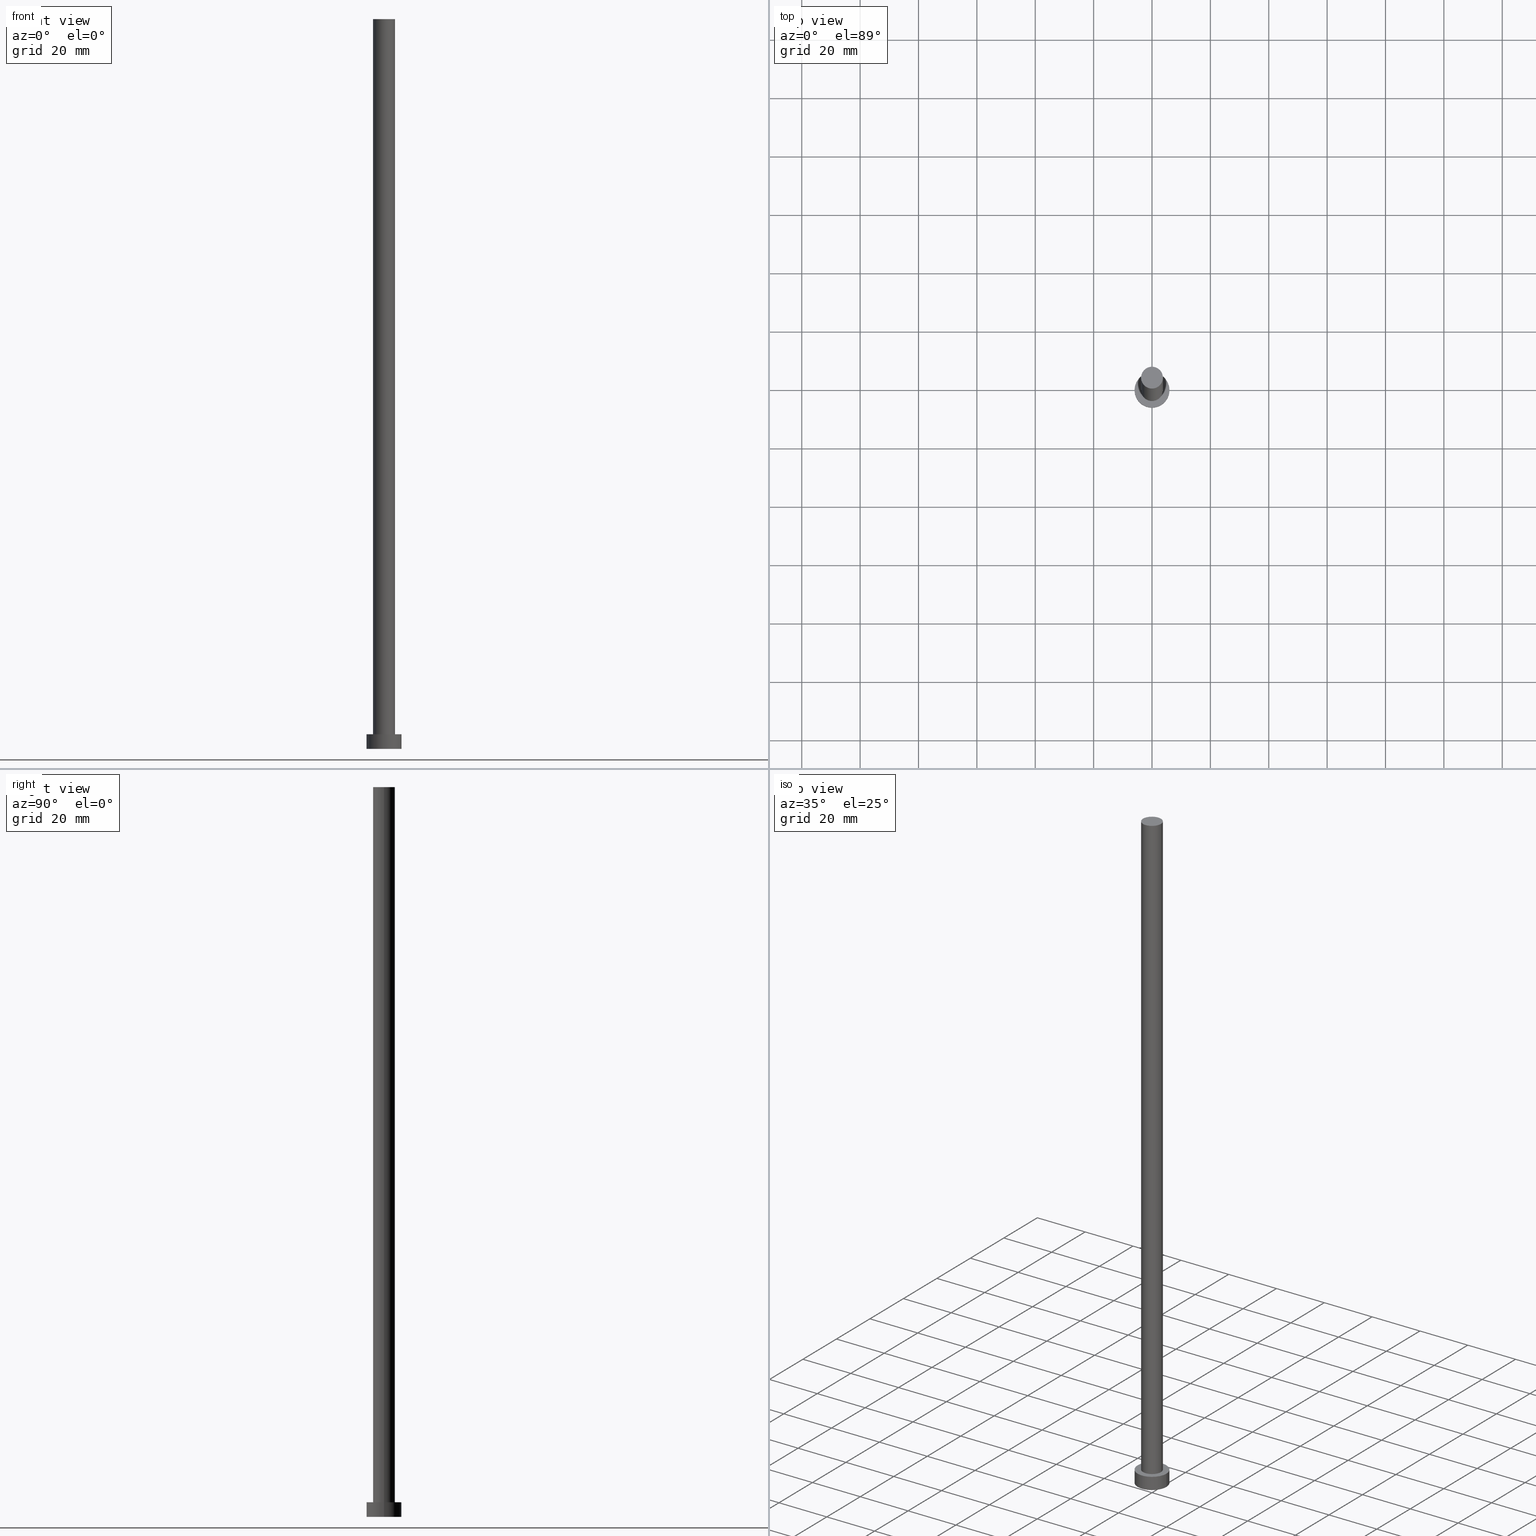
[diagram: canonical four-view strip — front | top / right | iso, engineering-drawing reading convention]
A machine part, canonical four-view strip (front | top / right | iso — engineering-drawing reading convention). The complete STEP part file that produces these views, byte-faithful:
ISO-10303-21;
HEADER;
FILE_DESCRIPTION (( 'STEP AP203' ),
    '1' );
FILE_NAME ('aa1a.STEP',
    '2023-02-12T11:57:01',
    ( '' ),
    ( '' ),
    'SwSTEP 2.0',
    'SolidWorks 2019',
    '' );
FILE_SCHEMA (( 'CONFIG_CONTROL_DESIGN' ));
ENDSEC;

DATA;
#1 = VERTEX_POINT ( 'NONE', #104 ) ;
#2 = DIRECTION ( 'NONE',  ( -0.000000000000000000, -0.000000000000000000, -1.000000000000000000 ) ) ;
#3 = EDGE_LOOP ( 'NONE', ( #223, #162, #79, #120 ) ) ;
#4 = CARTESIAN_POINT ( 'NONE',  ( 0.000000000000000000, 0.000000000000000000, 250.0000000000000000 ) ) ;
#5 = CIRCLE ( 'NONE', #180, 6.000000000000000888 ) ;
#6 = APPROVAL_PERSON_ORGANIZATION ( #75, #132, #34 ) ;
#7 = DIRECTION ( 'NONE',  ( 0.000000000000000000, 0.000000000000000000, 1.000000000000000000 ) ) ;
#8 = ADVANCED_FACE ( 'NONE', ( #179 ), #80, .T. ) ;
#9 = DIRECTION ( 'NONE',  ( 0.000000000000000000, 0.000000000000000000, 1.000000000000000000 ) ) ;
#10 = APPROVAL ( #192, 'NEUR�EN�' ) ;
#11 = DIRECTION ( 'NONE',  ( 1.000000000000000000, 0.000000000000000000, 0.000000000000000000 ) ) ;
#12 =( GEOMETRIC_REPRESENTATION_CONTEXT ( 3 ) GLOBAL_UNCERTAINTY_ASSIGNED_CONTEXT ( ( #62 ) ) GLOBAL_UNIT_ASSIGNED_CONTEXT ( ( #46, #87, #149 ) ) REPRESENTATION_CONTEXT ( 'NONE', 'WORKASPACE' ) );
#13 = APPLICATION_PROTOCOL_DEFINITION ( 'international standard', 'config_control_design', 1994, #198 ) ;
#14 = FACE_OUTER_BOUND ( 'NONE', #154, .T. ) ;
#15 = CC_DESIGN_SECURITY_CLASSIFICATION ( #119, ( #45 ) ) ;
#16 = CIRCLE ( 'NONE', #207, 6.000000000000000888 ) ;
#17 = CALENDAR_DATE ( 2023, 12, 2 ) ;
#18 = DATE_TIME_ROLE ( 'classification_date' ) ;
#19 = CC_DESIGN_PERSON_AND_ORGANIZATION_ASSIGNMENT ( #114, #137, ( #45 ) ) ;
#20 = AXIS2_PLACEMENT_3D ( 'NONE', #161, #200, #156 ) ;
#21 = ORIENTED_EDGE ( 'NONE', *, *, #108, .F. ) ;
#22 = CIRCLE ( 'NONE', #101, 6.000000000000000888 ) ;
#23 = CC_DESIGN_PERSON_AND_ORGANIZATION_ASSIGNMENT ( #68, #150, ( #215 ) ) ;
#24 = ORIENTED_EDGE ( 'NONE', *, *, #115, .T. ) ;
#25 = ORIENTED_EDGE ( 'NONE', *, *, #115, .F. ) ;
#26 = CARTESIAN_POINT ( 'NONE',  ( 6.000000000000000888, 7.347880794884120722E-16, 5.000000000000000000 ) ) ;
#27 = CIRCLE ( 'NONE', #20, 6.000000000000000888 ) ;
#28 = CARTESIAN_POINT ( 'NONE',  ( -3.750000000000000000, 0.000000000000000000, 250.0000000000000000 ) ) ;
#29 = DIRECTION ( 'NONE',  ( -0.000000000000000000, -0.000000000000000000, -1.000000000000000000 ) ) ;
#30 = FACE_BOUND ( 'NONE', #197, .T. ) ;
#31 = ADVANCED_BREP_SHAPE_REPRESENTATION ( 'aa1a', ( #240, #252 ), #12 ) ;
#32 = CARTESIAN_POINT ( 'NONE',  ( 0.000000000000000000, 0.000000000000000000, 5.000000000000000000 ) ) ;
#33 = VECTOR ( 'NONE', #107, 1000.000000000000000 ) ;
#34 = APPROVAL_ROLE ( '' ) ;
#35 = CC_DESIGN_PERSON_AND_ORGANIZATION_ASSIGNMENT ( #55, #255, ( #45 ) ) ;
#36 = DATE_AND_TIME ( #250, #110 ) ;
#37 = VECTOR ( 'NONE', #29, 1000.000000000000000 ) ;
#38 = ORIENTED_EDGE ( 'NONE', *, *, #52, .F. ) ;
#39 = EDGE_CURVE ( 'NONE', #143, #74, #5, .T. ) ;
#40 = DIRECTION ( 'NONE',  ( -0.000000000000000000, -0.000000000000000000, -1.000000000000000000 ) ) ;
#41 = ORIENTED_EDGE ( 'NONE', *, *, #57, .T. ) ;
#42 = ORIENTED_EDGE ( 'NONE', *, *, #108, .T. ) ;
#43 = DIRECTION ( 'NONE',  ( 1.000000000000000000, 0.000000000000000000, 0.000000000000000000 ) ) ;
#44 = CARTESIAN_POINT ( 'NONE',  ( 0.000000000000000000, 0.000000000000000000, 0.000000000000000000 ) ) ;
#45 = PRODUCT_DEFINITION_FORMATION_WITH_SPECIFIED_SOURCE ( 'LIBOVOLN�', '', #215, .NOT_KNOWN. ) ;
#46 =( LENGTH_UNIT ( ) NAMED_UNIT ( * ) SI_UNIT ( .MILLI., .METRE. ) );
#47 = DIRECTION ( 'NONE',  ( 0.000000000000000000, 0.000000000000000000, 1.000000000000000000 ) ) ;
#48 = ADVANCED_FACE ( 'NONE', ( #177 ), #182, .F. ) ;
#49 = DIRECTION ( 'NONE',  ( 0.000000000000000000, 0.000000000000000000, 1.000000000000000000 ) ) ;
#50 = CC_DESIGN_PERSON_AND_ORGANIZATION_ASSIGNMENT ( #170, #92, ( #119 ) ) ;
#51 = CARTESIAN_POINT ( 'NONE',  ( 3.750000000000000000, 4.592425496802573972E-16, 250.0000000000000000 ) ) ;
#52 = EDGE_CURVE ( 'NONE', #93, #99, #69, .T. ) ;
#53 = DIRECTION ( 'NONE',  ( 1.000000000000000000, 0.000000000000000000, 0.000000000000000000 ) ) ;
#54 = DATE_AND_TIME ( #118, #95 ) ;
#55 = PERSON_AND_ORGANIZATION ( #59, #82 ) ;
#56 = COORDINATED_UNIVERSAL_TIME_OFFSET ( 1, 0, .AHEAD. ) ;
#57 = EDGE_CURVE ( 'NONE', #242, #216, #139, .T. ) ;
#58 = ORIENTED_EDGE ( 'NONE', *, *, #168, .F. ) ;
#59 = PERSON ( 'NEUR�EN�', 'NEUR�EN�', 'NEUR�EN�', ('NEUR�EN�'), ('NEUR�EN�'), ('NEUR�EN�') ) ;
#60 = APPROVAL_STATUS ( 'not_yet_approved' ) ;
#61 = CYLINDRICAL_SURFACE ( 'NONE', #175, 6.000000000000000888 ) ;
#62 = UNCERTAINTY_MEASURE_WITH_UNIT (LENGTH_MEASURE( 1.000000000000000082E-05 ), #46, 'distance_accuracy_value', 'NONE');
#63 = DIRECTION ( 'NONE',  ( -1.000000000000000000, 0.000000000000000000, 0.000000000000000000 ) ) ;
#64 = FACE_OUTER_BOUND ( 'NONE', #3, .T. ) ;
#65 = ORIENTED_EDGE ( 'NONE', *, *, #127, .T. ) ;
#66 = CARTESIAN_POINT ( 'NONE',  ( 0.000000000000000000, 0.000000000000000000, 5.000000000000000000 ) ) ;
#67 = FACE_OUTER_BOUND ( 'NONE', #125, .T. ) ;
#68 = PERSON_AND_ORGANIZATION ( #59, #82 ) ;
#69 = CIRCLE ( 'NONE', #105, 3.750000000000000000 ) ;
#70 = DIRECTION ( 'NONE',  ( -0.000000000000000000, -0.000000000000000000, -1.000000000000000000 ) ) ;
#71 = CALENDAR_DATE ( 2023, 12, 2 ) ;
#72 = DATE_AND_TIME ( #231, #246 ) ;
#73 = AXIS2_PLACEMENT_3D ( 'NONE', #174, #239, #217 ) ;
#74 = VERTEX_POINT ( 'NONE', #129 ) ;
#75 = PERSON_AND_ORGANIZATION ( #59, #82 ) ;
#76 = EDGE_CURVE ( 'NONE', #1, #122, #27, .T. ) ;
#77 = CIRCLE ( 'NONE', #228, 3.750000000000000000 ) ;
#78 = ORIENTED_EDGE ( 'NONE', *, *, #181, .T. ) ;
#79 = ORIENTED_EDGE ( 'NONE', *, *, #39, .T. ) ;
#80 = CYLINDRICAL_SURFACE ( 'NONE', #73, 6.000000000000000888 ) ;
#81 = DIRECTION ( 'NONE',  ( 1.000000000000000000, 0.000000000000000000, 0.000000000000000000 ) ) ;
#82 = ORGANIZATION ( 'NEUR�EN�', 'NEUR�EN�', '' ) ;
#83 = CC_DESIGN_DATE_AND_TIME_ASSIGNMENT ( #72, #134, ( #142 ) ) ;
#84 = DIRECTION ( 'NONE',  ( 0.000000000000000000, 0.000000000000000000, 1.000000000000000000 ) ) ;
#85 = LINE ( 'NONE', #163, #208 ) ;
#86 = CYLINDRICAL_SURFACE ( 'NONE', #138, 3.750000000000000000 ) ;
#87 =( NAMED_UNIT ( * ) PLANE_ANGLE_UNIT ( ) SI_UNIT ( $, .RADIAN. ) );
#88 = LINE ( 'NONE', #28, #37 ) ;
#89 = ADVANCED_FACE ( 'NONE', ( #64 ), #61, .T. ) ;
#90 = CLOSED_SHELL ( 'NONE', ( #97, #89, #8, #171, #48, #201, #221 ) ) ;
#91 = SECURITY_CLASSIFICATION_LEVEL ( 'unclassified' ) ;
#92 = PERSON_AND_ORGANIZATION_ROLE ( 'classification_officer' ) ;
#93 = VERTEX_POINT ( 'NONE', #241 ) ;
#94 = APPROVAL_STATUS ( 'not_yet_approved' ) ;
#95 = LOCAL_TIME ( 12, 57, 1.000000000000000000, #96 ) ;
#96 = COORDINATED_UNIVERSAL_TIME_OFFSET ( 1, 0, .AHEAD. ) ;
#97 = ADVANCED_FACE ( 'NONE', ( #194 ), #244, .T. ) ;
#98 = EDGE_LOOP ( 'NONE', ( #21, #136 ) ) ;
#99 = VERTEX_POINT ( 'NONE', #124 ) ;
#100 = DESIGN_CONTEXT ( 'detailed design', #243, 'design' ) ;
#101 = AXIS2_PLACEMENT_3D ( 'NONE', #32, #47, #11 ) ;
#102 = ORIENTED_EDGE ( 'NONE', *, *, #76, .T. ) ;
#103 = DIRECTION ( 'NONE',  ( 0.000000000000000000, 0.000000000000000000, 1.000000000000000000 ) ) ;
#104 = CARTESIAN_POINT ( 'NONE',  ( -6.000000000000000888, 0.000000000000000000, 5.000000000000000000 ) ) ;
#105 = AXIS2_PLACEMENT_3D ( 'NONE', #4, #84, #81 ) ;
#106 = ORIENTED_EDGE ( 'NONE', *, *, #157, .T. ) ;
#107 = DIRECTION ( 'NONE',  ( -0.000000000000000000, -0.000000000000000000, -1.000000000000000000 ) ) ;
#108 = EDGE_CURVE ( 'NONE', #74, #143, #16, .T. ) ;
#109 = FACE_OUTER_BOUND ( 'NONE', #253, .T. ) ;
#110 = LOCAL_TIME ( 12, 57, 1.000000000000000000, #205 ) ;
#111 = DIRECTION ( 'NONE',  ( 1.000000000000000000, 0.000000000000000000, 0.000000000000000000 ) ) ;
#112 = DIRECTION ( 'NONE',  ( 1.000000000000000000, 0.000000000000000000, -0.000000000000000000 ) ) ;
#113 = LOCAL_TIME ( 12, 57, 1.000000000000000000, #153 ) ;
#114 = PERSON_AND_ORGANIZATION ( #59, #82 ) ;
#115 = EDGE_CURVE ( 'NONE', #216, #242, #77, .T. ) ;
#116 = ORIENTED_EDGE ( 'NONE', *, *, #233, .F. ) ;
#117 = PERSON_AND_ORGANIZATION ( #59, #82 ) ;
#118 = CALENDAR_DATE ( 2023, 12, 2 ) ;
#119 = SECURITY_CLASSIFICATION ( '', '', #91 ) ;
#120 = ORIENTED_EDGE ( 'NONE', *, *, #181, .F. ) ;
#121 = PRODUCT_RELATED_PRODUCT_CATEGORY ( 'detail', '', ( #215 ) ) ;
#122 = VERTEX_POINT ( 'NONE', #26 ) ;
#123 = DIRECTION ( 'NONE',  ( -1.000000000000000000, 0.000000000000000000, 0.000000000000000000 ) ) ;
#124 = CARTESIAN_POINT ( 'NONE',  ( -3.750000000000000000, 0.000000000000000000, 250.0000000000000000 ) ) ;
#125 = EDGE_LOOP ( 'NONE', ( #236, #193 ) ) ;
#126 = ORIENTED_EDGE ( 'NONE', *, *, #168, .T. ) ;
#127 = EDGE_CURVE ( 'NONE', #122, #1, #22, .T. ) ;
#128 = APPROVAL_PERSON_ORGANIZATION ( #191, #10, #172 ) ;
#129 = CARTESIAN_POINT ( 'NONE',  ( -6.000000000000000888, 0.000000000000000000, 0.000000000000000000 ) ) ;
#130 = DIRECTION ( 'NONE',  ( -0.000000000000000000, -0.000000000000000000, -1.000000000000000000 ) ) ;
#131 = CARTESIAN_POINT ( 'NONE',  ( 0.000000000000000000, 0.000000000000000000, 5.000000000000000000 ) ) ;
#132 = APPROVAL ( #94, 'NEUR�EN�' ) ;
#133 = CARTESIAN_POINT ( 'NONE',  ( 3.750000000000000000, 4.592425496802573972E-16, 5.000000000000000000 ) ) ;
#134 = DATE_TIME_ROLE ( 'creation_date' ) ;
#135 = AXIS2_PLACEMENT_3D ( 'NONE', #178, #2, #63 ) ;
#136 = ORIENTED_EDGE ( 'NONE', *, *, #39, .F. ) ;
#137 = PERSON_AND_ORGANIZATION_ROLE ( 'creator' ) ;
#138 = AXIS2_PLACEMENT_3D ( 'NONE', #249, #70, #151 ) ;
#139 = CIRCLE ( 'NONE', #238, 3.750000000000000000 ) ;
#140 = ORIENTED_EDGE ( 'NONE', *, *, #214, .F. ) ;
#141 = CARTESIAN_POINT ( 'NONE',  ( 0.000000000000000000, 0.000000000000000000, 5.000000000000000000 ) ) ;
#142 = PRODUCT_DEFINITION ( 'NEZN�M�', '', #45, #100 ) ;
#143 = VERTEX_POINT ( 'NONE', #167 ) ;
#144 = CC_DESIGN_APPROVAL ( #10, ( #119 ) ) ;
#145 = DIRECTION ( 'NONE',  ( 0.000000000000000000, 0.000000000000000000, 1.000000000000000000 ) ) ;
#146 = DIRECTION ( 'NONE',  ( 0.000000000000000000, 0.000000000000000000, 1.000000000000000000 ) ) ;
#147 = DIRECTION ( 'NONE',  ( 0.000000000000000000, 0.000000000000000000, 1.000000000000000000 ) ) ;
#148 = VECTOR ( 'NONE', #130, 1000.000000000000000 ) ;
#149 =( NAMED_UNIT ( * ) SI_UNIT ( $, .STERADIAN. ) SOLID_ANGLE_UNIT ( ) );
#150 = PERSON_AND_ORGANIZATION_ROLE ( 'design_owner' ) ;
#151 = DIRECTION ( 'NONE',  ( -1.000000000000000000, 0.000000000000000000, 0.000000000000000000 ) ) ;
#152 = APPROVAL_ROLE ( '' ) ;
#153 = COORDINATED_UNIVERSAL_TIME_OFFSET ( 1, 0, .AHEAD. ) ;
#154 = EDGE_LOOP ( 'NONE', ( #102, #65 ) ) ;
#155 = ORIENTED_EDGE ( 'NONE', *, *, #157, .F. ) ;
#156 = DIRECTION ( 'NONE',  ( 1.000000000000000000, 0.000000000000000000, 0.000000000000000000 ) ) ;
#157 = EDGE_CURVE ( 'NONE', #93, #216, #202, .T. ) ;
#158 = DIRECTION ( 'NONE',  ( 1.000000000000000000, 0.000000000000000000, 0.000000000000000000 ) ) ;
#159 = CC_DESIGN_DATE_AND_TIME_ASSIGNMENT ( #36, #18, ( #119 ) ) ;
#160 = CARTESIAN_POINT ( 'NONE',  ( 0.000000000000000000, 0.000000000000000000, 5.000000000000000000 ) ) ;
#161 = CARTESIAN_POINT ( 'NONE',  ( 0.000000000000000000, 0.000000000000000000, 5.000000000000000000 ) ) ;
#162 = ORIENTED_EDGE ( 'NONE', *, *, #233, .T. ) ;
#163 = CARTESIAN_POINT ( 'NONE',  ( 6.000000000000000888, 7.347880794884120722E-16, 5.000000000000000000 ) ) ;
#164 = LOCAL_TIME ( 12, 57, 1.000000000000000000, #251 ) ;
#165 = PLANE ( 'NONE',  #219 ) ;
#166 = CC_DESIGN_PERSON_AND_ORGANIZATION_ASSIGNMENT ( #117, #206, ( #142 ) ) ;
#167 = CARTESIAN_POINT ( 'NONE',  ( 6.000000000000000888, 7.347880794884120722E-16, 0.000000000000000000 ) ) ;
#168 = EDGE_CURVE ( 'NONE', #99, #242, #88, .T. ) ;
#169 = PERSON_AND_ORGANIZATION ( #59, #82 ) ;
#170 = PERSON_AND_ORGANIZATION ( #59, #82 ) ;
#171 = ADVANCED_FACE ( 'NONE', ( #30, #14 ), #184, .T. ) ;
#172 = APPROVAL_ROLE ( '' ) ;
#173 = ORIENTED_EDGE ( 'NONE', *, *, #76, .F. ) ;
#174 = CARTESIAN_POINT ( 'NONE',  ( 0.000000000000000000, 0.000000000000000000, 5.000000000000000000 ) ) ;
#175 = AXIS2_PLACEMENT_3D ( 'NONE', #141, #40, #123 ) ;
#176 = AXIS2_PLACEMENT_3D ( 'NONE', #183, #230, #53 ) ;
#177 = FACE_OUTER_BOUND ( 'NONE', #98, .T. ) ;
#178 = CARTESIAN_POINT ( 'NONE',  ( 0.000000000000000000, 0.000000000000000000, 250.0000000000000000 ) ) ;
#179 = FACE_OUTER_BOUND ( 'NONE', #254, .T. ) ;
#180 = AXIS2_PLACEMENT_3D ( 'NONE', #222, #146, #199 ) ;
#181 = EDGE_CURVE ( 'NONE', #1, #74, #224, .T. ) ;
#182 = PLANE ( 'NONE',  #218 ) ;
#183 = CARTESIAN_POINT ( 'NONE',  ( 0.000000000000000000, 0.000000000000000000, 250.0000000000000000 ) ) ;
#184 = PLANE ( 'NONE',  #248 ) ;
#185 = DIRECTION ( 'NONE',  ( 1.000000000000000000, 0.000000000000000000, -0.000000000000000000 ) ) ;
#186 = MECHANICAL_CONTEXT ( 'NONE', #198, 'mechanical' ) ;
#187 = CARTESIAN_POINT ( 'NONE',  ( -6.000000000000000888, 0.000000000000000000, 5.000000000000000000 ) ) ;
#188 = APPROVAL_DATE_TIME ( #190, #10 ) ;
#189 = CC_DESIGN_APPROVAL ( #210, ( #142 ) ) ;
#190 = DATE_AND_TIME ( #71, #164 ) ;
#191 = PERSON_AND_ORGANIZATION ( #59, #82 ) ;
#192 = APPROVAL_STATUS ( 'not_yet_approved' ) ;
#193 = ORIENTED_EDGE ( 'NONE', *, *, #52, .T. ) ;
#194 = FACE_OUTER_BOUND ( 'NONE', #212, .T. ) ;
#195 = APPROVAL_PERSON_ORGANIZATION ( #169, #210, #152 ) ;
#196 = CARTESIAN_POINT ( 'NONE',  ( 0.000000000000000000, 0.000000000000000000, 0.000000000000000000 ) ) ;
#197 = EDGE_LOOP ( 'NONE', ( #237, #25 ) ) ;
#198 = APPLICATION_CONTEXT ( 'configuration controlled 3d designs of mechanical parts and assemblies' ) ;
#199 = DIRECTION ( 'NONE',  ( 1.000000000000000000, 0.000000000000000000, 0.000000000000000000 ) ) ;
#200 = DIRECTION ( 'NONE',  ( 0.000000000000000000, 0.000000000000000000, 1.000000000000000000 ) ) ;
#201 = ADVANCED_FACE ( 'NONE', ( #109 ), #86, .T. ) ;
#202 = LINE ( 'NONE', #51, #148 ) ;
#203 = CARTESIAN_POINT ( 'NONE',  ( -3.750000000000000000, 0.000000000000000000, 5.000000000000000000 ) ) ;
#204 = DIRECTION ( 'NONE',  ( 0.000000000000000000, 0.000000000000000000, 1.000000000000000000 ) ) ;
#205 = COORDINATED_UNIVERSAL_TIME_OFFSET ( 1, 0, .AHEAD. ) ;
#206 = PERSON_AND_ORGANIZATION_ROLE ( 'creator' ) ;
#207 = AXIS2_PLACEMENT_3D ( 'NONE', #196, #103, #43 ) ;
#208 = VECTOR ( 'NONE', #225, 1000.000000000000000 ) ;
#209 = APPROVAL_DATE_TIME ( #211, #132 ) ;
#210 = APPROVAL ( #60, 'NEUR�EN�' ) ;
#211 = DATE_AND_TIME ( #17, #113 ) ;
#212 = EDGE_LOOP ( 'NONE', ( #38, #106, #24, #58 ) ) ;
#213 = CIRCLE ( 'NONE', #176, 3.750000000000000000 ) ;
#214 = EDGE_CURVE ( 'NONE', #99, #93, #213, .T. ) ;
#215 = PRODUCT ( 'aa1a', 'aa1a', '', ( #186 ) ) ;
#216 = VERTEX_POINT ( 'NONE', #133 ) ;
#217 = DIRECTION ( 'NONE',  ( -1.000000000000000000, 0.000000000000000000, 0.000000000000000000 ) ) ;
#218 = AXIS2_PLACEMENT_3D ( 'NONE', #44, #7, #245 ) ;
#219 = AXIS2_PLACEMENT_3D ( 'NONE', #247, #9, #185 ) ;
#220 = DIRECTION ( 'NONE',  ( 1.000000000000000000, 0.000000000000000000, 0.000000000000000000 ) ) ;
#221 = ADVANCED_FACE ( 'NONE', ( #67 ), #165, .T. ) ;
#222 = CARTESIAN_POINT ( 'NONE',  ( 0.000000000000000000, 0.000000000000000000, 0.000000000000000000 ) ) ;
#223 = ORIENTED_EDGE ( 'NONE', *, *, #127, .F. ) ;
#224 = LINE ( 'NONE', #187, #33 ) ;
#225 = DIRECTION ( 'NONE',  ( -0.000000000000000000, -0.000000000000000000, -1.000000000000000000 ) ) ;
#226 = CARTESIAN_POINT ( 'NONE',  ( 0.000000000000000000, 0.000000000000000000, 0.000000000000000000 ) ) ;
#227 = CC_DESIGN_APPROVAL ( #132, ( #45 ) ) ;
#228 = AXIS2_PLACEMENT_3D ( 'NONE', #160, #145, #220 ) ;
#229 = APPLICATION_PROTOCOL_DEFINITION ( 'international standard', 'config_control_design', 1994, #243 ) ;
#230 = DIRECTION ( 'NONE',  ( 0.000000000000000000, 0.000000000000000000, 1.000000000000000000 ) ) ;
#231 = CALENDAR_DATE ( 2023, 12, 2 ) ;
#232 = PRODUCT_DEFINITION_SHAPE ( 'NONE', 'NONE',  #142 ) ;
#233 = EDGE_CURVE ( 'NONE', #122, #143, #85, .T. ) ;
#234 = APPROVAL_DATE_TIME ( #54, #210 ) ;
#235 = SHAPE_DEFINITION_REPRESENTATION ( #232, #31 ) ;
#236 = ORIENTED_EDGE ( 'NONE', *, *, #214, .T. ) ;
#237 = ORIENTED_EDGE ( 'NONE', *, *, #57, .F. ) ;
#238 = AXIS2_PLACEMENT_3D ( 'NONE', #66, #147, #158 ) ;
#239 = DIRECTION ( 'NONE',  ( -0.000000000000000000, -0.000000000000000000, -1.000000000000000000 ) ) ;
#240 = MANIFOLD_SOLID_BREP ( 'P�idat vysunut�m3', #90 ) ;
#241 = CARTESIAN_POINT ( 'NONE',  ( 3.750000000000000000, 4.592425496802573972E-16, 250.0000000000000000 ) ) ;
#242 = VERTEX_POINT ( 'NONE', #203 ) ;
#243 = APPLICATION_CONTEXT ( 'configuration controlled 3d designs of mechanical parts and assemblies' ) ;
#244 = CYLINDRICAL_SURFACE ( 'NONE', #135, 3.750000000000000000 ) ;
#245 = DIRECTION ( 'NONE',  ( 1.000000000000000000, 0.000000000000000000, -0.000000000000000000 ) ) ;
#246 = LOCAL_TIME ( 12, 57, 1.000000000000000000, #56 ) ;
#247 = CARTESIAN_POINT ( 'NONE',  ( 0.000000000000000000, 0.000000000000000000, 250.0000000000000000 ) ) ;
#248 = AXIS2_PLACEMENT_3D ( 'NONE', #131, #204, #112 ) ;
#249 = CARTESIAN_POINT ( 'NONE',  ( 0.000000000000000000, 0.000000000000000000, 250.0000000000000000 ) ) ;
#250 = CALENDAR_DATE ( 2023, 12, 2 ) ;
#251 = COORDINATED_UNIVERSAL_TIME_OFFSET ( 1, 0, .AHEAD. ) ;
#252 = AXIS2_PLACEMENT_3D ( 'NONE', #226, #49, #111 ) ;
#253 = EDGE_LOOP ( 'NONE', ( #155, #140, #126, #41 ) ) ;
#254 = EDGE_LOOP ( 'NONE', ( #116, #173, #78, #42 ) ) ;
#255 = PERSON_AND_ORGANIZATION_ROLE ( 'design_supplier' ) ;
ENDSEC;
END-ISO-10303-21;
